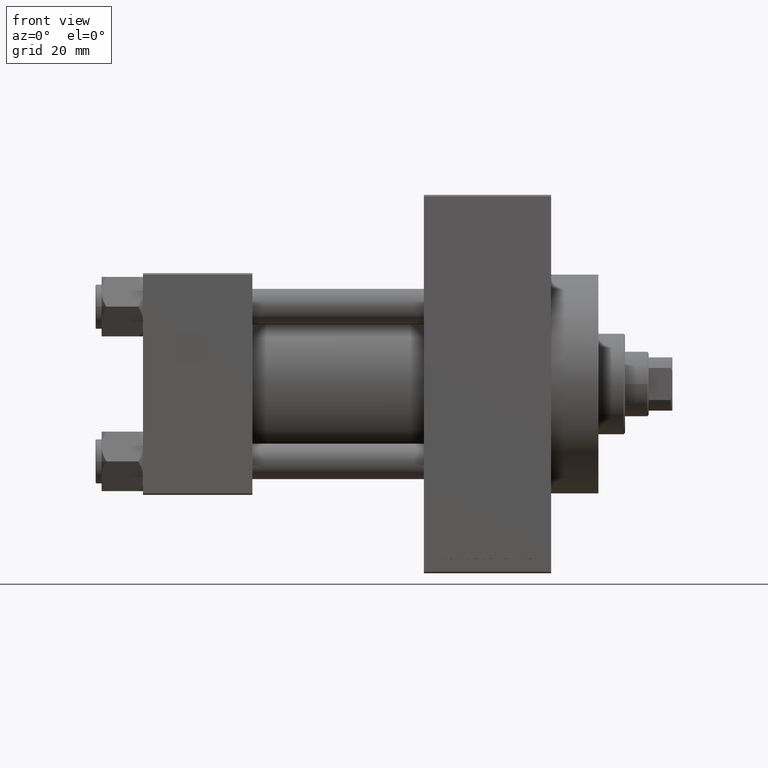
[diagram: clean part render]
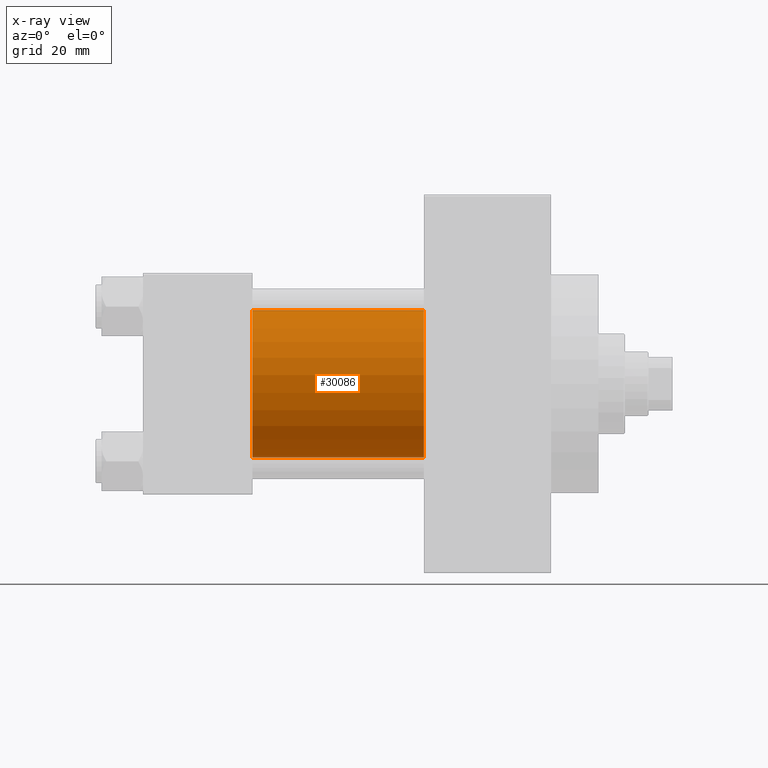
[diagram: x-ray — body ghosted, one internal face saturated and labeled with its STEP entity id]
A machine part, front view, then the same camera in x-ray: the body is ghosted and one INTERNAL B-rep face — a face not visible from any outside direction — is saturated and labeled: STEP entity #30086.
In plain terms, the highlighted cylindrical surface (partial cylindrical patch) has radius 25 mm, axis along (-1, -0, -0).
Its self-contained STEP definition (entity closure, byte-faithful):
#2113 = VERTEX_POINT ( 'NONE', #27373 ) ;
#4374 = ORIENTED_EDGE ( 'NONE', *, *, #47756, .T. ) ;
#7944 = ORIENTED_EDGE ( 'NONE', *, *, #12109, .F. ) ;
#8397 = CARTESIAN_POINT ( 'NONE',  ( 95.00000000000000000, 4.595317839031718093E-16, -25.00000000000000000 ) ) ;
#9159 = DIRECTION ( 'NONE',  ( 0.000000000000000000, 0.000000000000000000, 1.000000000000000000 ) ) ;
#9236 = VERTEX_POINT ( 'NONE', #42657 ) ;
#9732 = CIRCLE ( 'NONE', #24019, 25.00000000000000000 ) ;
#10740 = AXIS2_PLACEMENT_3D ( 'NONE', #49184, #19486, #14994 ) ;
#11257 = AXIS2_PLACEMENT_3D ( 'NONE', #29145, #44370, #9159 ) ;
#12109 = EDGE_CURVE ( 'NONE', #45342, #2113, #31724, .T. ) ;
#12884 = VECTOR ( 'NONE', #45029, 1000.000000000000000 ) ;
#13695 = VERTEX_POINT ( 'NONE', #8397 ) ;
#13916 = CYLINDRICAL_SURFACE ( 'NONE', #11257, 25.00000000000000000 ) ;
#14994 = DIRECTION ( 'NONE',  ( 0.000000000000000000, 0.000000000000000000, -1.000000000000000000 ) ) ;
#15491 = CIRCLE ( 'NONE', #10740, 25.00000000000000000 ) ;
#19486 = DIRECTION ( 'NONE',  ( 1.000000000000000000, 0.000000000000000000, 0.000000000000000000 ) ) ;
#24019 = AXIS2_PLACEMENT_3D ( 'NONE', #24180, #42894, #43151 ) ;
#24180 = CARTESIAN_POINT ( 'NONE',  ( 37.00000000000000000, -2.602085213965210642E-15, 0.000000000000000000 ) ) ;
#27373 = CARTESIAN_POINT ( 'NONE',  ( 37.00000000000000000, -2.602085213965210642E-15, 25.00000000000000000 ) ) ;
#27453 = ORIENTED_EDGE ( 'NONE', *, *, #39726, .T. ) ;
#29145 = CARTESIAN_POINT ( 'NONE',  ( 95.00000000000000000, -2.602085213965210642E-15, 0.000000000000000000 ) ) ;
#29798 = CARTESIAN_POINT ( 'NONE',  ( 95.00000000000000000, 4.595317839031718093E-16, -25.00000000000000000 ) ) ;
#30086 = ADVANCED_FACE ( 'NONE', ( #48103 ), #13916, .F. ) ;
#31724 = LINE ( 'NONE', #46205, #33835 ) ;
#33835 = VECTOR ( 'NONE', #42722, 1000.000000000000000 ) ;
#37486 = EDGE_LOOP ( 'NONE', ( #4374, #27453, #46097, #7944 ) ) ;
#39726 = EDGE_CURVE ( 'NONE', #13695, #9236, #41523, .T. ) ;
#40521 = EDGE_CURVE ( 'NONE', #2113, #9236, #9732, .T. ) ;
#41523 = LINE ( 'NONE', #29798, #12884 ) ;
#42657 = CARTESIAN_POINT ( 'NONE',  ( 37.00000000000000000, 4.595317839031718093E-16, -25.00000000000000000 ) ) ;
#42722 = DIRECTION ( 'NONE',  ( -1.000000000000000000, -0.000000000000000000, -0.000000000000000000 ) ) ;
#42894 = DIRECTION ( 'NONE',  ( 1.000000000000000000, 0.000000000000000000, 0.000000000000000000 ) ) ;
#43151 = DIRECTION ( 'NONE',  ( 0.000000000000000000, 0.000000000000000000, -1.000000000000000000 ) ) ;
#44370 = DIRECTION ( 'NONE',  ( -1.000000000000000000, -0.000000000000000000, -0.000000000000000000 ) ) ;
#45029 = DIRECTION ( 'NONE',  ( -1.000000000000000000, -0.000000000000000000, -0.000000000000000000 ) ) ;
#45342 = VERTEX_POINT ( 'NONE', #47742 ) ;
#46097 = ORIENTED_EDGE ( 'NONE', *, *, #40521, .F. ) ;
#46205 = CARTESIAN_POINT ( 'NONE',  ( 95.00000000000000000, -2.602085213965210642E-15, 25.00000000000000000 ) ) ;
#47742 = CARTESIAN_POINT ( 'NONE',  ( 95.00000000000000000, -2.602085213965210642E-15, 25.00000000000000000 ) ) ;
#47756 = EDGE_CURVE ( 'NONE', #45342, #13695, #15491, .T. ) ;
#48103 = FACE_OUTER_BOUND ( 'NONE', #37486, .T. ) ;
#49184 = CARTESIAN_POINT ( 'NONE',  ( 95.00000000000000000, -2.602085213965210642E-15, 0.000000000000000000 ) ) ;